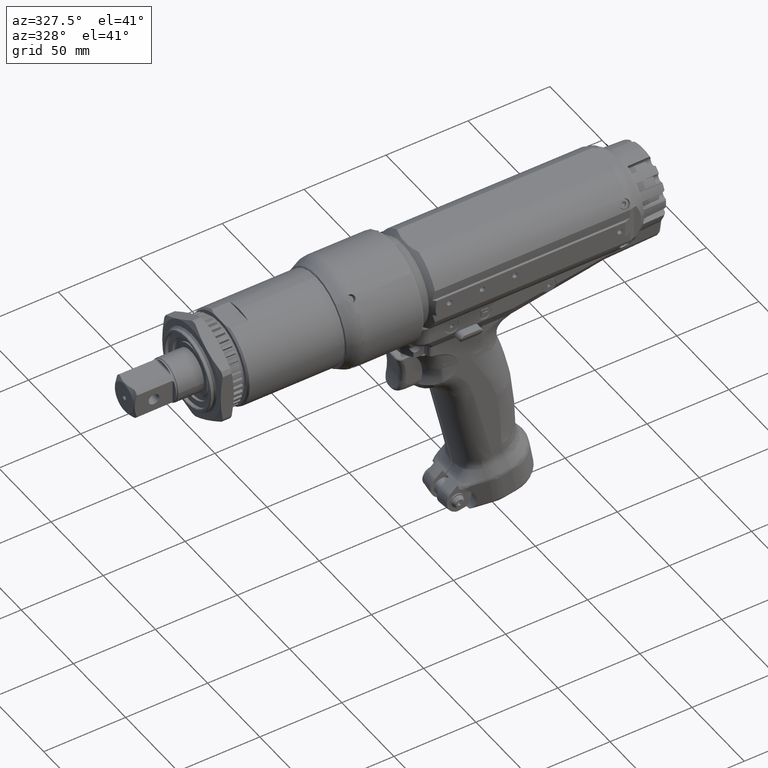
[diagram: clean part render]
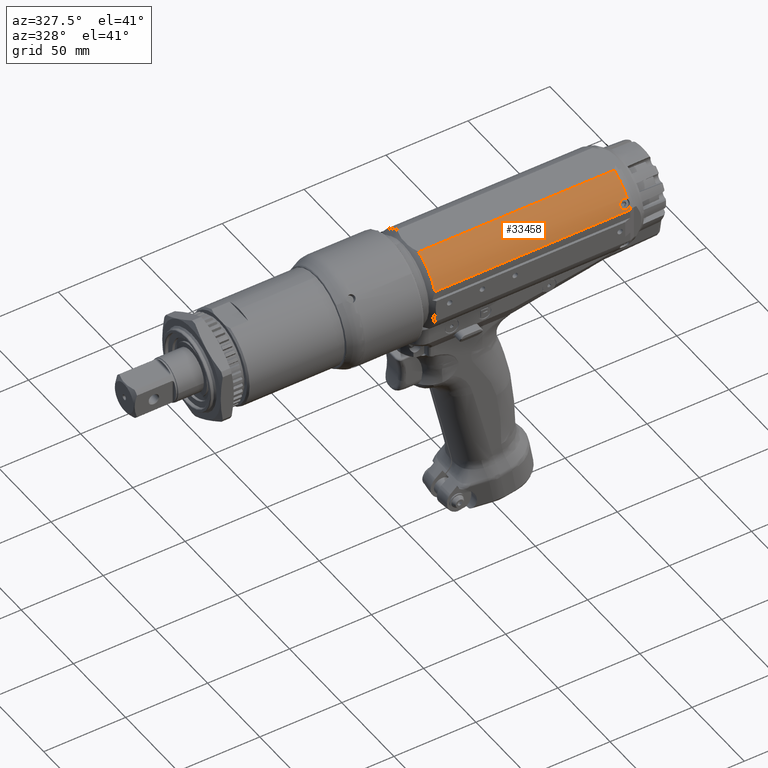
[diagram: same view with one face highlighted and labeled with its STEP entity id]
A machine part, auxiliary view. The second image highlights one B-rep face of the part: STEP entity #33458.
In plain terms, the highlighted cylindrical surface (partial cylindrical patch) has radius 28 mm, axis along (1, 0, -0).
Its self-contained STEP definition (entity closure, byte-faithful):
#866=CYLINDRICAL_SURFACE('',#35847,28.);
#2667=LINE('',#82750,#4650);
#2675=LINE('',#82897,#4658);
#4650=VECTOR('',#41618,10.);
#4658=VECTOR('',#41658,10.);
#7153=FACE_OUTER_BOUND('',#9030,.T.);
#9030=EDGE_LOOP('',(#26087,#26088,#26089,#26090,#26091,#26092,#26093));
#10554=CIRCLE('',#35848,28.);
#10555=CIRCLE('',#35849,28.);
#10556=CIRCLE('',#35850,28.);
#12050=B_SPLINE_CURVE_WITH_KNOTS('',3,(#82901,#82902,#82903,#82904,#82905,
#82906,#82907,#82908,#82909,#82910,#82911,#82912,#82913,#82914,#82915,#82916,
#82917,#82918,#82919,#82920,#82921,#82922,#82923,#82924),.UNSPECIFIED.,
 .F.,.F.,(4,2,2,2,2,2,2,2,2,2,2,4),(0.659587477362353,0.67859485447748,
0.791694335566858,0.904793816656237,1.01789329774561,1.13099277883499,1.24409175190967,
1.35719072498435,1.47028969805903,1.58338867113372,1.69648815222309,1.80958763331247),
 .UNSPECIFIED.);
#12051=B_SPLINE_CURVE_WITH_KNOTS('',3,(#82925,#82926,#82927,#82928,#82929,
#82930,#82931,#82932),.UNSPECIFIED.,.F.,.F.,(4,2,2,4),(0.,0.113099481089379,
0.226198962178758,0.245206339293309),.UNSPECIFIED.);
#14305=VERTEX_POINT('',#82733);
#14310=VERTEX_POINT('',#82746);
#14332=VERTEX_POINT('',#82892);
#14333=VERTEX_POINT('',#82894);
#14334=VERTEX_POINT('',#82896);
#14335=VERTEX_POINT('',#82898);
#14336=VERTEX_POINT('',#82900);
#18484=EDGE_CURVE('',#14310,#14305,#2667,.T.);
#18508=EDGE_CURVE('',#14332,#14305,#10554,.T.);
#18509=EDGE_CURVE('',#14310,#14333,#10555,.T.);
#18510=EDGE_CURVE('',#14333,#14334,#2675,.T.);
#18511=EDGE_CURVE('',#14334,#14335,#10556,.T.);
#18512=EDGE_CURVE('',#14335,#14336,#12050,.T.);
#18513=EDGE_CURVE('',#14336,#14332,#12051,.T.);
#26087=ORIENTED_EDGE('',*,*,#18508,.T.);
#26088=ORIENTED_EDGE('',*,*,#18484,.F.);
#26089=ORIENTED_EDGE('',*,*,#18509,.T.);
#26090=ORIENTED_EDGE('',*,*,#18510,.T.);
#26091=ORIENTED_EDGE('',*,*,#18511,.T.);
#26092=ORIENTED_EDGE('',*,*,#18512,.T.);
#26093=ORIENTED_EDGE('',*,*,#18513,.T.);
#33458=ADVANCED_FACE('',(#7153),#866,.T.);
#35847=AXIS2_PLACEMENT_3D('',#82891,#41652,#41653);
#35848=AXIS2_PLACEMENT_3D('',#82893,#41654,#41655);
#35849=AXIS2_PLACEMENT_3D('',#82895,#41656,#41657);
#35850=AXIS2_PLACEMENT_3D('',#82899,#41659,#41660);
#41618=DIRECTION('',(1.,4.02244907513958E-16,-4.96652491747744E-15));
#41652=DIRECTION('center_axis',(1.,4.02244907513958E-16,-4.96652491747744E-15));
#41653=DIRECTION('ref_axis',(-4.76106784127906E-15,0.371153744479045,-0.928571428571429));
#41654=DIRECTION('center_axis',(-1.,-4.02244907513958E-16,4.96652491747744E-15));
#41655=DIRECTION('ref_axis',(-4.76106784127906E-15,0.371153744479045,-0.928571428571429));
#41656=DIRECTION('center_axis',(1.,4.02244907513958E-16,-4.96652491747744E-15));
#41657=DIRECTION('ref_axis',(-4.76106784127906E-15,0.371153744479045,-0.928571428571429));
#41658=DIRECTION('',(1.,4.02244907513958E-16,-4.96652491747744E-15));
#41659=DIRECTION('center_axis',(-1.,-4.02244907513958E-16,4.96652491747744E-15));
#41660=DIRECTION('ref_axis',(-4.76106784127906E-15,0.371153744479045,-0.928571428571429));
#82733=CARTESIAN_POINT('',(123.252522580546,-10.3923048454132,25.9999999999995));
#82746=CARTESIAN_POINT('',(4.00000000000027,-10.3923048454132,26.0000000000001));
#82750=CARTESIAN_POINT('',(-11.4999999999997,-10.3923048454132,26.0000000000001));
#82891=CARTESIAN_POINT('Origin',(-11.4999999999999,1.11379170522889E-14,
1.19904086659517E-13));
#82892=CARTESIAN_POINT('',(123.252522580546,-23.1971935993214,15.6808867451934));
#82893=CARTESIAN_POINT('Origin',(123.252522580546,6.53414330349729E-14,
-5.50670620214078E-13));
#82894=CARTESIAN_POINT('',(4.0000000000002,-26.,10.3923048454133));
#82895=CARTESIAN_POINT('Origin',(4.00000000000014,1.73727131187552E-14,
4.44089209850063E-14));
#82896=CARTESIAN_POINT('',(123.252522580546,-25.9999999999999,10.3923048454127));
#82897=CARTESIAN_POINT('',(-11.4999999999998,-26.,10.3923048454134));
#82898=CARTESIAN_POINT('',(123.252522580546,-25.1786430748653,12.2489155809207));
#82899=CARTESIAN_POINT('Origin',(123.252522580546,6.53414330349729E-14,
-5.50670620214078E-13));
#82900=CARTESIAN_POINT('',(121.,-22.6091269024823,16.5174871184278));
#82901=CARTESIAN_POINT('Ctrl Pts',(123.252522580549,-25.1786430748633,12.2489155809247));
#82902=CARTESIAN_POINT('Ctrl Pts',(123.209883517297,-25.1999011327329,12.2052179125046));
#82903=CARTESIAN_POINT('Ctrl Pts',(123.16605664269,-25.2202555218428,12.163088600474));
#82904=CARTESIAN_POINT('Ctrl Pts',(122.855126213416,-25.355261375958,11.8820027326087));
#82905=CARTESIAN_POINT('Ctrl Pts',(122.517977755814,-25.4519975031657,11.671311083078));
#82906=CARTESIAN_POINT('Ctrl Pts',(121.778926194621,-25.5787414149292,11.3908589248198));
#82907=CARTESIAN_POINT('Ctrl Pts',(121.376998270298,-25.6091269024823,11.3213346957212));
#82908=CARTESIAN_POINT('Ctrl Pts',(120.623001729702,-25.6091269024823,11.3213346957212));
#82909=CARTESIAN_POINT('Ctrl Pts',(120.22107380538,-25.5787414149292,11.3908589248198));
#82910=CARTESIAN_POINT('Ctrl Pts',(119.482022244187,-25.4519975031657,11.671311083078));
#82911=CARTESIAN_POINT('Ctrl Pts',(119.144873786584,-25.355261375958,11.8820027326087));
#82912=CARTESIAN_POINT('Ctrl Pts',(118.612486721975,-25.124099149265,12.363288788932));
#82913=CARTESIAN_POINT('Ctrl Pts',(118.381653403056,-24.9741578316121,12.6660262380689));
#82914=CARTESIAN_POINT('Ctrl Pts',(118.075402060531,-24.6309052059837,13.3212345070747));
#82915=CARTESIAN_POINT('Ctrl Pts',(118.,-24.437209594422,13.6735113872508));
#82916=CARTESIAN_POINT('Ctrl Pts',(118.,-24.0602130175064,14.3264886127482));
#82917=CARTESIAN_POINT('Ctrl Pts',(118.075402060531,-23.8519800958888,14.6703723730502));
#82918=CARTESIAN_POINT('Ctrl Pts',(118.381653403056,-23.4561794029743,15.295242001263));
#82919=CARTESIAN_POINT('Ctrl Pts',(118.612486721975,-23.2689717401714,15.5764637159958));
#82920=CARTESIAN_POINT('Ctrl Pts',(119.144873786584,-22.9677469022547,16.0172991048689));
#82921=CARTESIAN_POINT('Ctrl Pts',(119.482022244187,-22.8336506449996,16.2064208732599));
#82922=CARTESIAN_POINT('Ctrl Pts',(120.22107380538,-22.6541439072836,16.4564103997511));
#82923=CARTESIAN_POINT('Ctrl Pts',(120.623001729702,-22.6091269024823,16.5174871184278));
#82924=CARTESIAN_POINT('Ctrl Pts',(121.,-22.6091269024823,16.5174871184278));
#82925=CARTESIAN_POINT('Ctrl Pts',(121.,-22.6091269024823,16.5174871184278));
#82926=CARTESIAN_POINT('Ctrl Pts',(121.376998270298,-22.6091269024823,16.5174871184278));
#82927=CARTESIAN_POINT('Ctrl Pts',(121.778926194621,-22.6541439072836,16.4564103997511));
#82928=CARTESIAN_POINT('Ctrl Pts',(122.517977755814,-22.8336506449997,16.2064208732598));
#82929=CARTESIAN_POINT('Ctrl Pts',(122.855126213416,-22.9677469022547,16.0172991048689));
#82930=CARTESIAN_POINT('Ctrl Pts',(123.166056642689,-23.1436714774125,15.7598376716139));
#82931=CARTESIAN_POINT('Ctrl Pts',(123.209883517294,-23.1699793373191,15.7211455975522));
#82932=CARTESIAN_POINT('Ctrl Pts',(123.252522580546,-23.1971935993214,15.6808867451934));